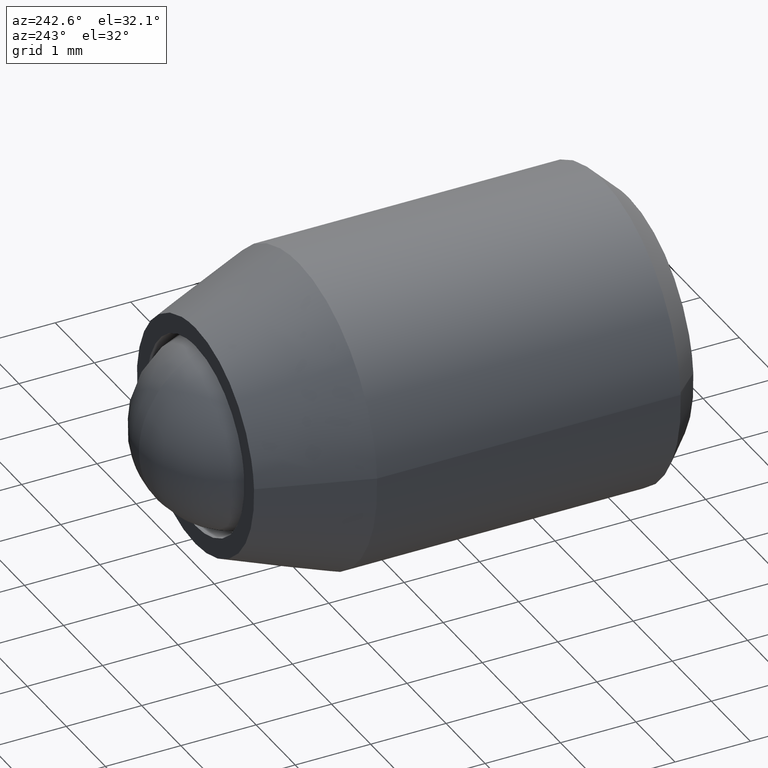
[diagram: clean part render]
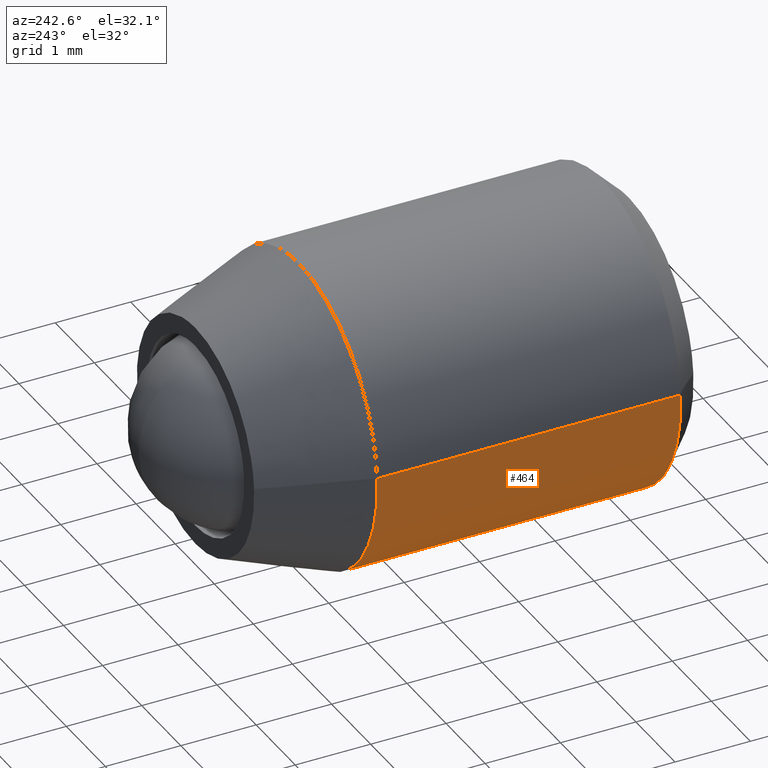
[diagram: same view with one face highlighted and labeled with its STEP entity id]
A machine part, auxiliary view. The second image highlights one B-rep face of the part: STEP entity #464.
In plain terms, the highlighted face is a freeform B-spline surface patch.
Its self-contained STEP definition (entity closure, byte-faithful):
#260=CARTESIAN_POINT('',(-0.468646445757333,-6.150000000000000,-1.944317491789438));
#261=VERTEX_POINT('',#260);
#277=CARTESIAN_POINT('',(-0.468646455401585,-2.123739000000001,-1.944317489464851));
#278=VERTEX_POINT('',#277);
#279=CARTESIAN_POINT('',(-0.468646455401585,-2.123739000000001,-1.944317489464851));
#280=CARTESIAN_POINT('',(-0.468646445757333,-6.150000000000000,-1.944317491789438));
#281=QUASI_UNIFORM_CURVE('',1,(#279,#280),.UNSPECIFIED.,.F.,.U.);
#282=EDGE_CURVE('',#278,#261,#281,.T.);
#331=CARTESIAN_POINT('',(-1.996269361620150,-2.123737383784706,0.122096106656471));
#332=VERTEX_POINT('',#331);
#346=CARTESIAN_POINT('',(-1.996269606912893,-6.150000000000000,0.122096914440200));
#347=VERTEX_POINT('',#346);
#348=CARTESIAN_POINT('',(-1.996269361620150,-2.123737383784706,0.122096106656471));
#349=CARTESIAN_POINT('',(-1.996269606912893,-6.150000000000000,0.122096914440200));
#350=QUASI_UNIFORM_CURVE('',1,(#348,#349),.UNSPECIFIED.,.F.,.U.);
#351=EDGE_CURVE('',#332,#347,#350,.T.);
#416=CARTESIAN_POINT('',(-1.996269596843733,-2.023082474999999,0.122097079069714));
#417=CARTESIAN_POINT('',(-2.098627273861051,-2.023082474999999,-1.551436147032736));
#418=CARTESIAN_POINT('',(-0.468647227970026,-2.023082475000000,-1.944317303249655));
#419=CARTESIAN_POINT('',(-1.996269596843733,-6.253172938125003,0.122097079069714));
#420=CARTESIAN_POINT('',(-2.098627273861051,-6.253172938125003,-1.551436147032736));
#421=CARTESIAN_POINT('',(-0.468647227970026,-6.253172938125003,-1.944317303249655));
#429=(BOUNDED_SURFACE()B_SPLINE_SURFACE(2,1,((#416,#419),(#417,#420),(#418,#421)),.UNSPECIFIED.,.F.,.F.,.U.)B_SPLINE_SURFACE_WITH_KNOTS((3,3),(2,2),(0.0,2.908876664709617),(0.0,4.230090463125004),.UNSPECIFIED.)GEOMETRIC_REPRESENTATION_ITEM()RATIONAL_B_SPLINE_SURFACE(((1.0,1.0),(0.742253967444162,0.742253967444162),(0.938140952186599,0.938140952186599)))REPRESENTATION_ITEM('')SURFACE());
#430=CARTESIAN_POINT('',(-1.996269606912892,-6.150000000000000,0.122096914440200));
#431=CARTESIAN_POINT('',(-2.000000000000000,-6.150000000000000,0.061105361506060));
#432=CARTESIAN_POINT('',(-2.0,-6.150000000000000,-4.439198E-016));
#433=CARTESIAN_POINT('',(-1.999999999999999,-6.150000000000001,-1.575210010121462));
#434=CARTESIAN_POINT('',(-0.468646445757333,-6.150000000000000,-1.944317491789438));
#442=(BOUNDED_CURVE()B_SPLINE_CURVE(2,(#430,#431,#432,#433,#434),.UNSPECIFIED.,.F.,.U.)B_SPLINE_CURVE_WITH_KNOTS((3,2,3),(0.739332990701346,0.750000000000000,0.959962840916567),.UNSPECIFIED.)CURVE()GEOMETRIC_REPRESENTATION_ITEM()RATIONAL_B_SPLINE_CURVE((0.976072102667072,0.987502821245616,1.0,0.754013230770919,0.921211108703645))REPRESENTATION_ITEM(''));
#443=EDGE_CURVE('',#347,#261,#442,.T.);
#444=ORIENTED_EDGE('',*,*,#443,.F.);
#445=ORIENTED_EDGE('',*,*,#351,.F.);
#446=CARTESIAN_POINT('',(-1.996269361620151,-2.123737383784706,0.122096106656471));
#447=CARTESIAN_POINT('',(-1.999999725827601,-2.123737413235773,0.061105033794331));
#448=CARTESIAN_POINT('',(-1.999999746213645,-2.123737444139167,-0.000000010332801));
#449=CARTESIAN_POINT('',(-2.000000271739791,-2.123738240789173,-1.575209903741137));
#450=CARTESIAN_POINT('',(-0.468646455401585,-2.123739000000000,-1.944317489464851));
#458=(BOUNDED_CURVE()B_SPLINE_CURVE(2,(#446,#447,#448,#449,#450),.UNSPECIFIED.,.F.,.U.)B_SPLINE_CURVE_WITH_KNOTS((3,2,3),(0.739333044740011,0.750000000000000,0.959962839301034),.UNSPECIFIED.)CURVE()GEOMETRIC_REPRESENTATION_ITEM()RATIONAL_B_SPLINE_CURVE((0.976072218482274,0.987502884555851,1.0,0.754013232663634,0.921211106130678))REPRESENTATION_ITEM(''));
#459=EDGE_CURVE('',#332,#278,#458,.T.);
#460=ORIENTED_EDGE('',*,*,#459,.T.);
#461=ORIENTED_EDGE('',*,*,#282,.T.);
#462=EDGE_LOOP('',(#444,#445,#460,#461));
#463=FACE_OUTER_BOUND('',#462,.T.);
#464=ADVANCED_FACE('',(#463),#429,.T.);